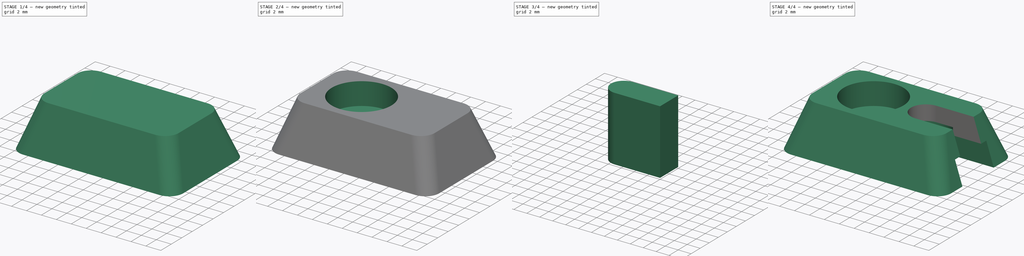
[diagram: build sequence overview — one tinted view per stage of 4, left to right]
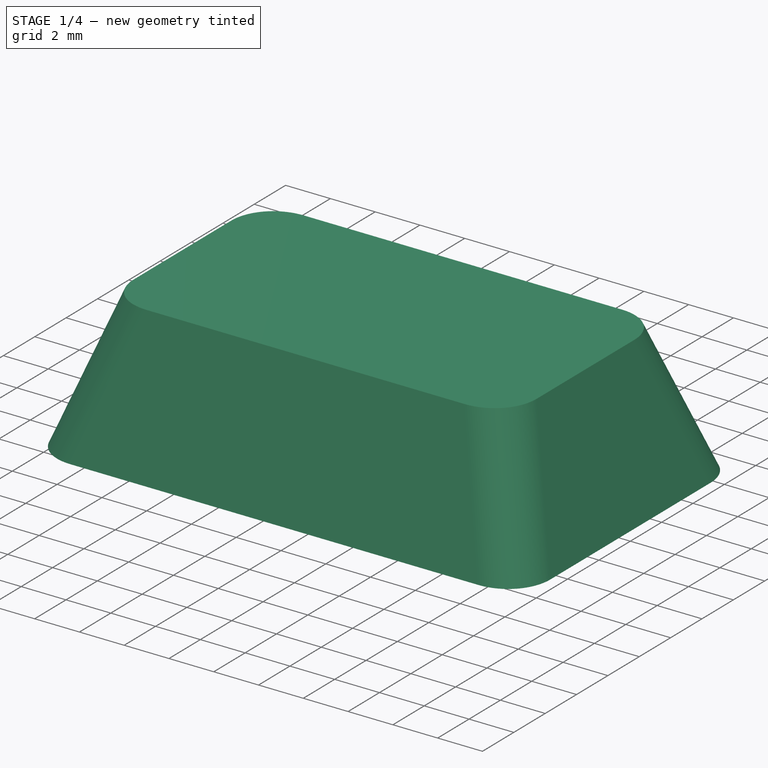
[diagram: stage 1 of 4 — iso view after this stage's code; geometry added in this stage tinted green]
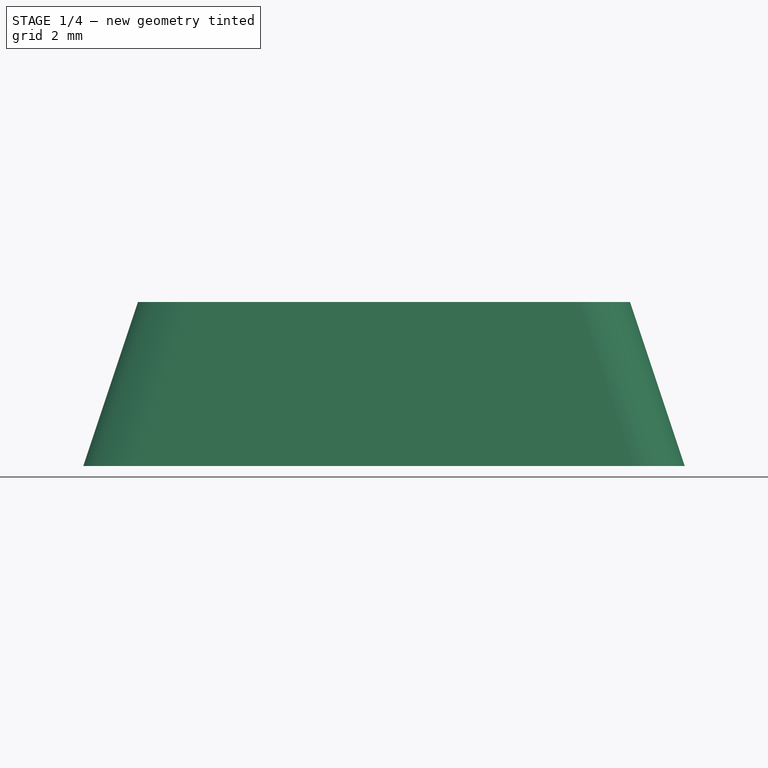
[diagram: stage 1 of 4 — front view after this stage's code; geometry added in this stage tinted green]
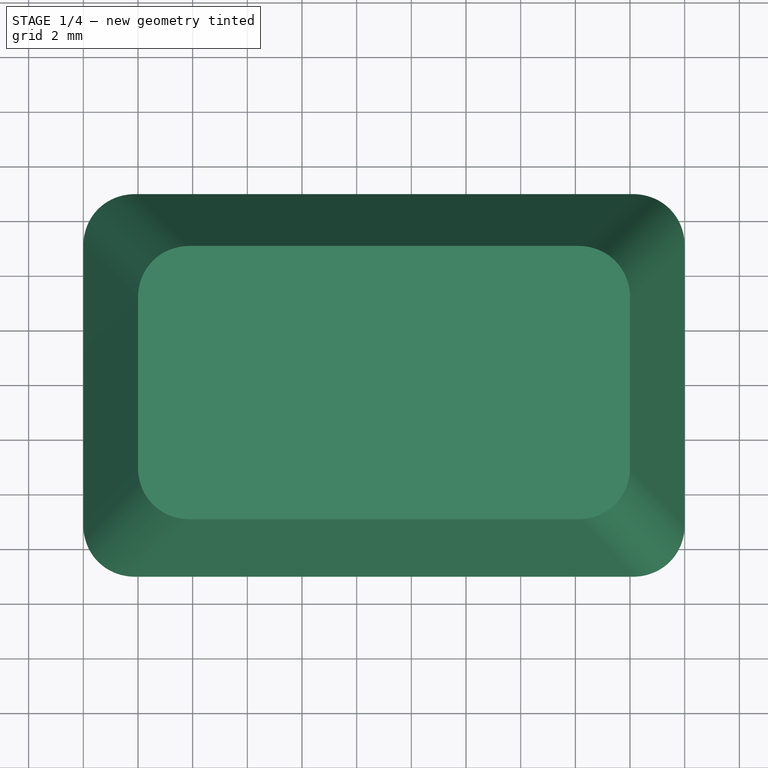
[diagram: stage 1 of 4 — top view after this stage's code; geometry added in this stage tinted green]
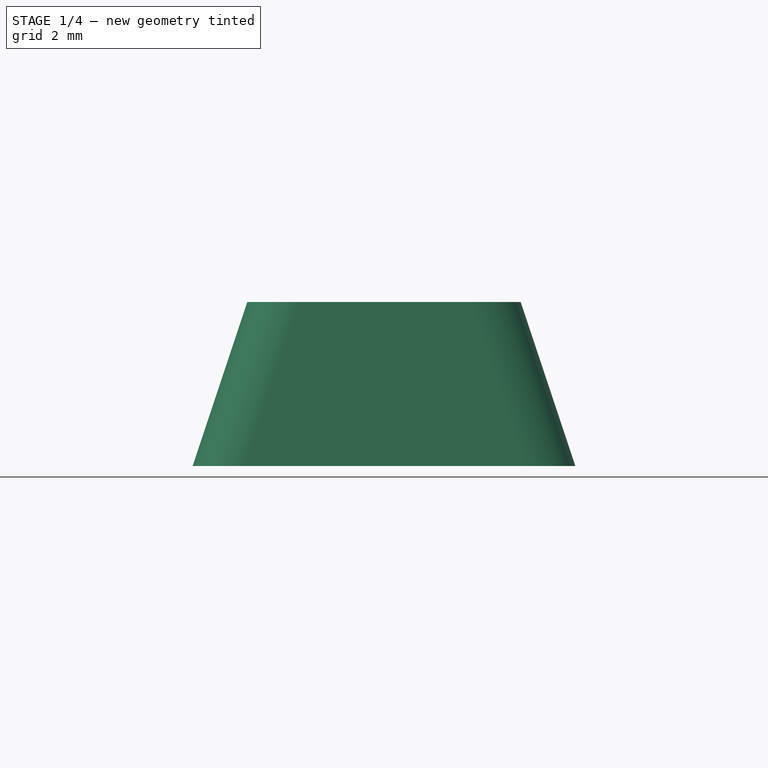
[diagram: stage 1 of 4 — right view after this stage's code; geometry added in this stage tinted green]
FCSTD DOCUMENT  (FreeCAD 0.15R4671 (Git))
Label: tensor.FCSt
License: All rights reserved
LicenseURL: http://en.wikipedia.org/wiki/All_rights_reserved
objects: Sketcher::SketchObject×5, PartDesign::Pocket×3, PartDesign::Pad×2, Part::Cut×2, Part::Wedge×1, Part::Fillet×1
note: 19 computed .brp shape members not serialized (recipe doc carries the construction recipe); baked Part::Feature solids carry a one-line shape summary decoded from their .brp

FEATURE [Part::Wedge] Wedge002  label="base"
  Placement = pos=(0,-7,0) rot=(0.57735,0.57735,0.57735;2.0944rad)
  X2max = 12
  X2min = 2
  Xmax = 14
  Xmin = 0
  Ymax = 6
  Ymin = 0
  Z2max = 20
  Z2min = 2
  Zmax = 22
  Zmin = 0
FEATURE [Part::Fillet] Fillet  label="base_redondeada"
  Base = -> Wedge002
  Edges = 4 edges r=2: [Edge2,Edge4,Edge6,Edge8]
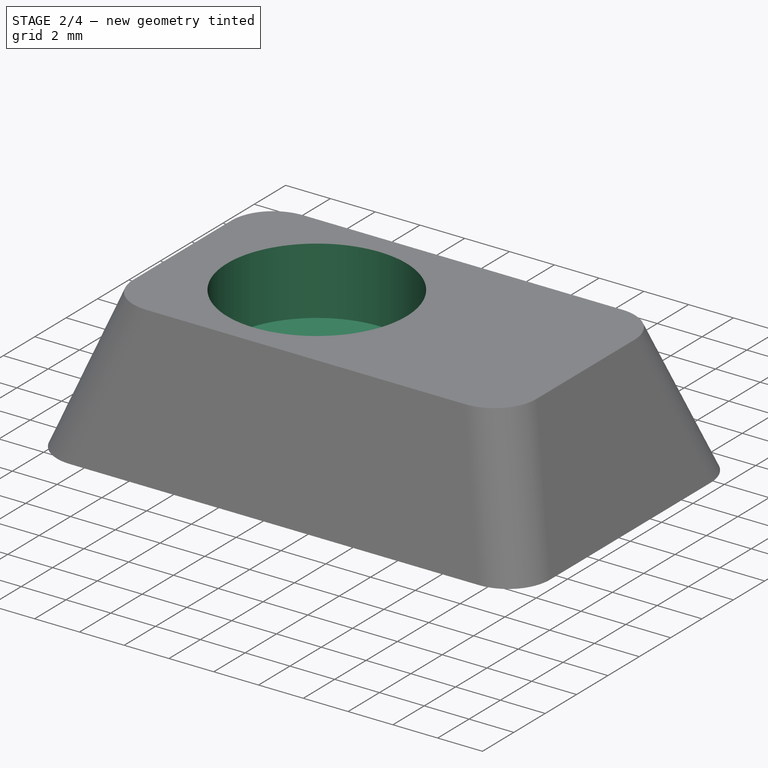
[diagram: stage 2 of 4 — iso view after this stage's code; geometry added in this stage tinted green]
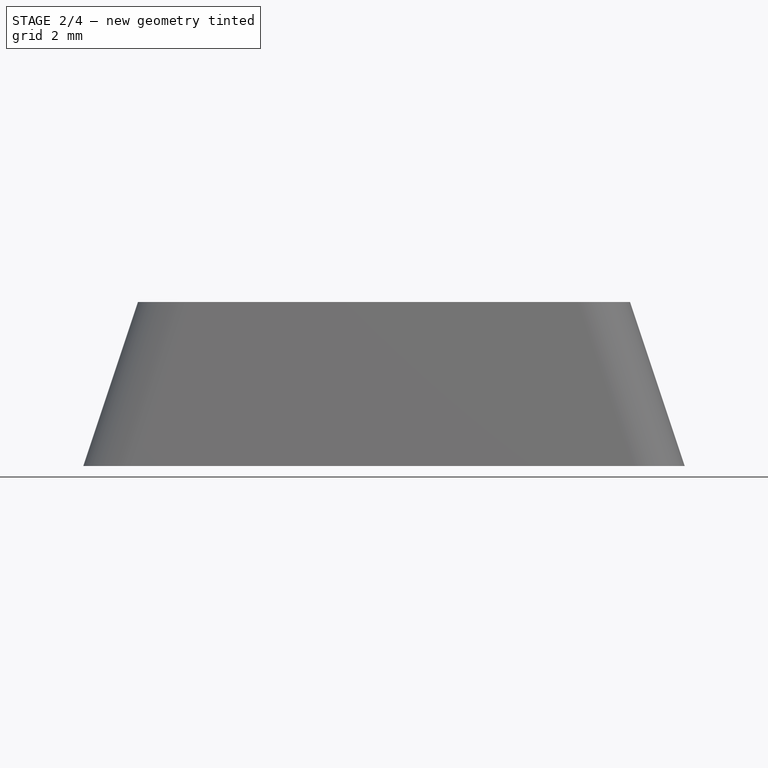
[diagram: stage 2 of 4 — front view after this stage's code; geometry added in this stage tinted green]
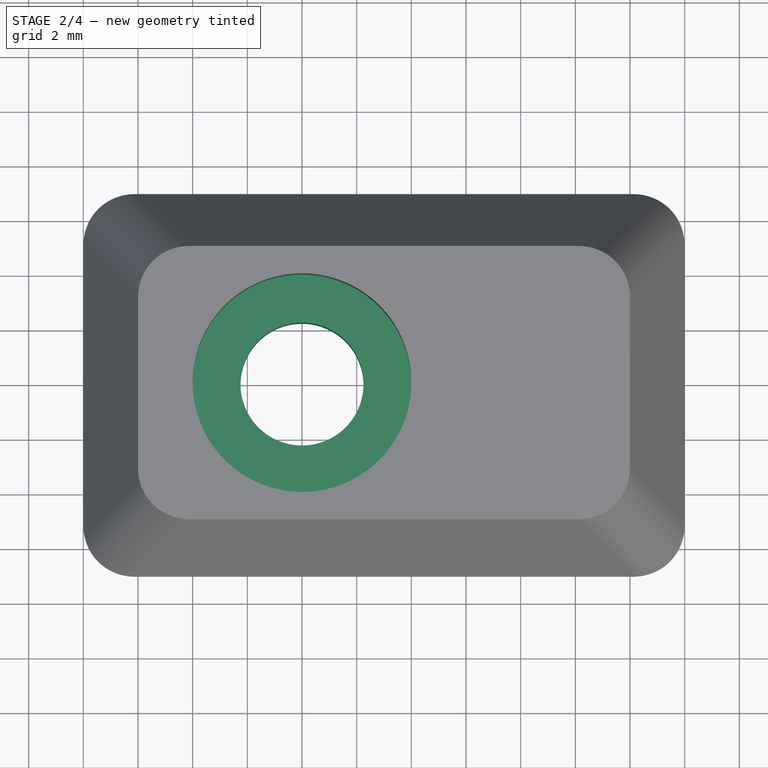
[diagram: stage 2 of 4 — top view after this stage's code; geometry added in this stage tinted green]
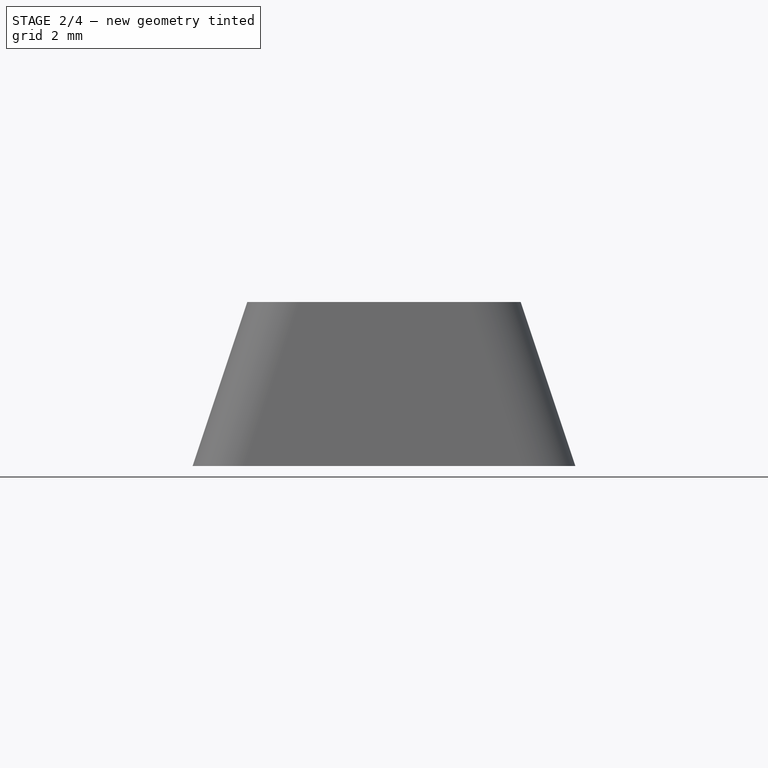
[diagram: stage 2 of 4 — right view after this stage's code; geometry added in this stage tinted green]
FEATURE [Sketcher::SketchObject] Sketch
  ExternalGeometry = -> [Fillet]
  Placement = pos=(0,0,6) rot=(0,0,1;0rad)
  Support = -> Fillet [Face5]
  sketch-geometry (4):
    g0: LineSegment [constr] StartX=2 StartY=0 StartZ=0 EndX=8 EndY=0 EndZ=0
    g1: LineSegment [constr] StartX=8 StartY=0 StartZ=0 EndX=8 EndY=5 EndZ=0
    g2: LineSegment [constr] StartX=8 StartY=0 StartZ=0 EndX=8 EndY=-5 EndZ=0
    g3: Circle CenterX=8 CenterY=0 CenterZ=0 NormalX=0 NormalY=0 NormalZ=1 Radius=4
  constraints (12):
    c: PointOnObject(g0,g-3)
    c: Horizontal(g0)
    c: DistanceX(g0) = 6
    c: Coincident(g1,g0)
    c: PointOnObject(g1,g-4)
    c: Vertical(g1)
    c: Coincident(g2,g0)
    c: PointOnObject(g2,g-5)
    c: Vertical(g2)
    c: Equal(g1,g2)
    c: Coincident(g3,g0)
    c: Radius(g3) = 4
FEATURE [PartDesign::Pocket] Pocket  label="base_medio_agujero_tornillo"
  Length = 3
  Sketch = -> Sketch
  Type = 0
FEATURE [Sketcher::SketchObject] Sketch001
  ExternalGeometry = -> [Pocket]
  Placement = pos=(0,0,3) rot=(0,0,1;0rad)
  Support = -> Pocket [Face12]
  sketch-geometry (1):
    g0: Circle CenterX=8 CenterY=0 CenterZ=0 NormalX=0 NormalY=0 NormalZ=1 Radius=2.25
  constraints (2):
    c: Coincident(g0,g-3)
    c: Radius(g0) = 2.25
FEATURE [PartDesign::Pocket] Pocket001  label="base_agujero_tornillo"
  Length = 5
  Sketch = -> Sketch001
  Type = 1
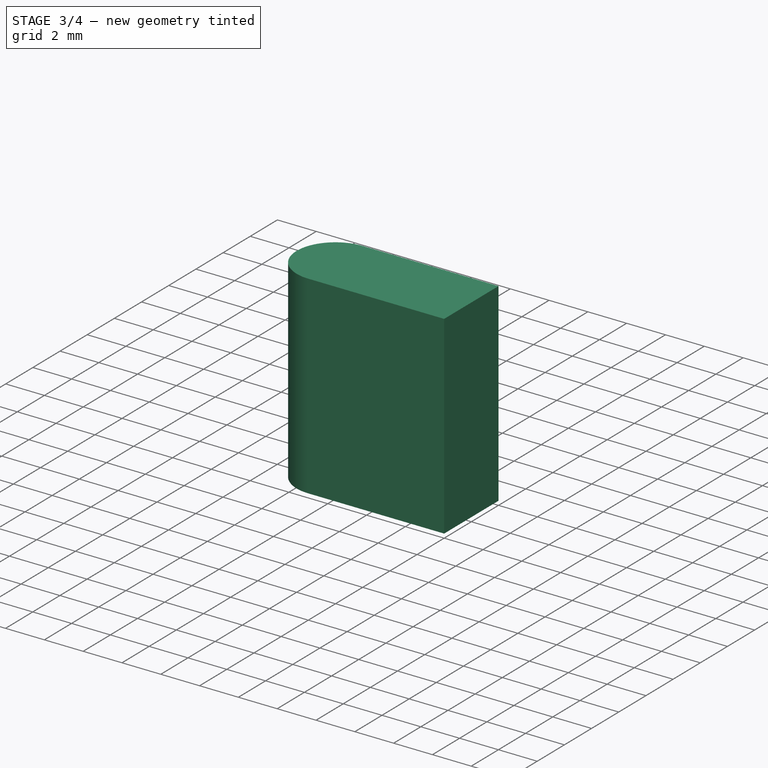
[diagram: stage 3 of 4 — iso view after this stage's code; geometry added in this stage tinted green]
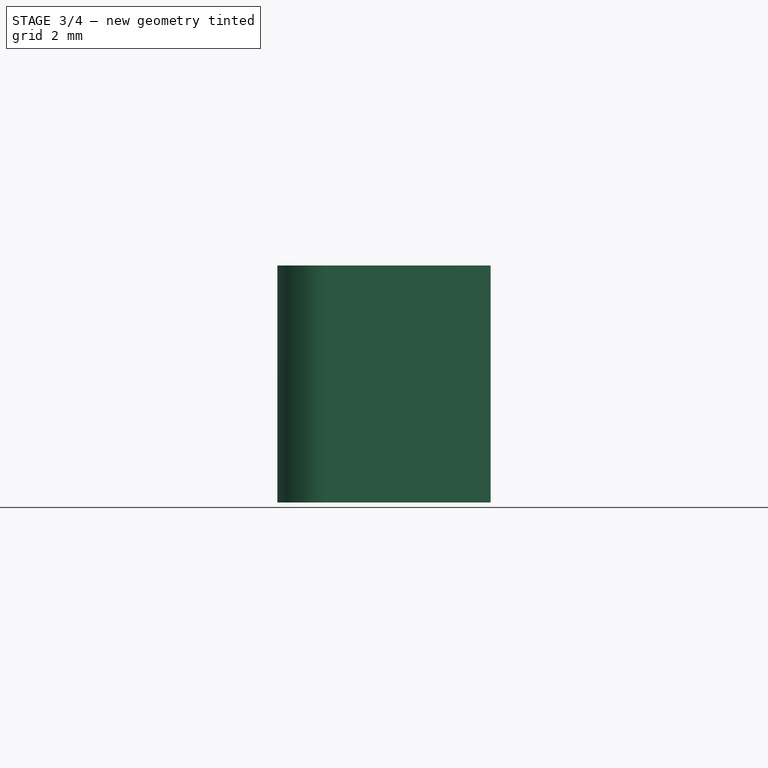
[diagram: stage 3 of 4 — front view after this stage's code; geometry added in this stage tinted green]
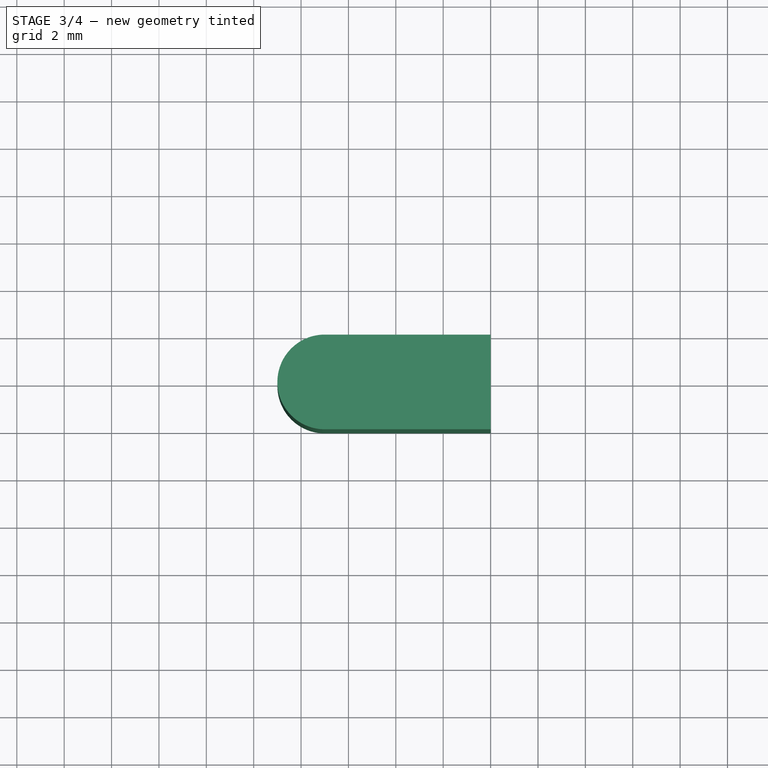
[diagram: stage 3 of 4 — top view after this stage's code; geometry added in this stage tinted green]
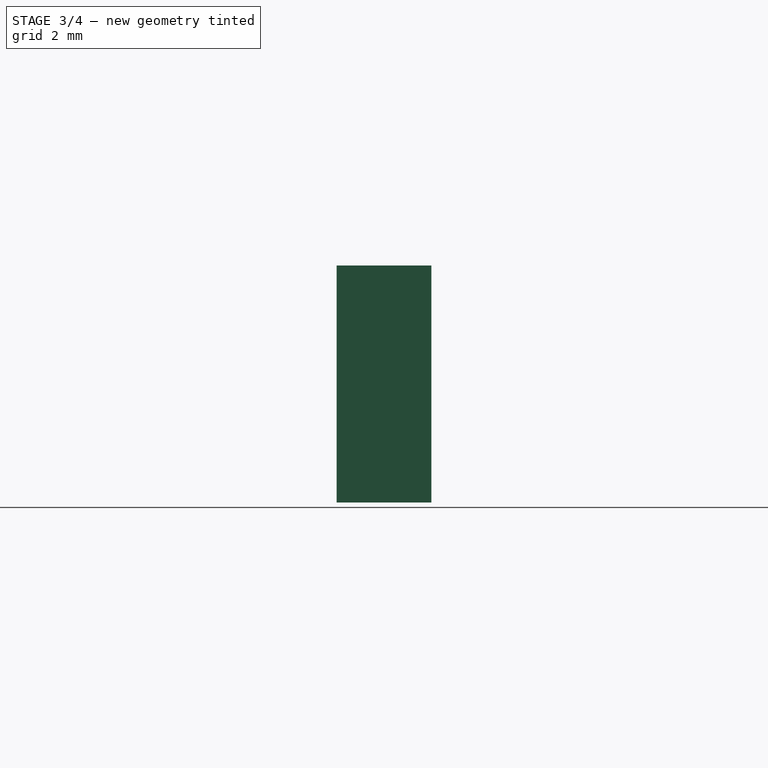
[diagram: stage 3 of 4 — right view after this stage's code; geometry added in this stage tinted green]
FEATURE [Sketcher::SketchObject] Sketch002
  ExternalGeometry = -> [Pocket001]
  sketch-geometry (7):
    g0: LineSegment StartX=22 StartY=3 StartZ=0 EndX=15 EndY=3 EndZ=0
    g1: LineSegment StartX=22 StartY=-3 StartZ=0 EndX=15 EndY=-3 EndZ=0
    g2: ArcOfCircle CenterX=15 CenterY=0 CenterZ=0 NormalX=0 NormalY=0 NormalZ=1 Radius=3 StartAngle=1.5708 EndAngle=4.71239
    g3: LineSegment [constr] StartX=22 StartY=0 StartZ=0 EndX=12 EndY=0 EndZ=0
    g4: LineSegment StartX=22 StartY=3 StartZ=0 EndX=22 EndY=-3 EndZ=0
    g5: LineSegment StartX=22 StartY=3 StartZ=0 EndX=22 EndY=-3 EndZ=0
    g6: LineSegment StartX=22 StartY=3 StartZ=0 EndX=22 EndY=-3 EndZ=0
  constraints (21):
    c: PointOnObject(g0,g-3)
    c: Horizontal(g0)
    c: Horizontal(g1)
    c: Symmetric(g1,g0,g-1)
    c: PointOnObject(g2,g-1)
    c: Coincident(g2,g0)
    c: Coincident(g2,g1)
    c: Tangent(g2,g0)
    c: PointOnObject(g3,g-1)
    c: PointOnObject(g3,g2)
    c: Horizontal(g3)
    c: PointOnObject(g3,g-3)
    c: DistanceX(g3) = -10
    c: Coincident(g4,g0)
    c: Coincident(g4,g1)
    c: Coincident(g5,g0)
    c: Coincident(g5,g1)
    c: DistanceY(g5) = -6
    c: Vertical(g6)
    c: Coincident(g6,g0)
    c: Coincident(g6,g1)
FEATURE [PartDesign::Pad] Pad  label="camara_inferior soporte."
  Length = 3
  Length2 = 100
  Sketch = -> Sketch002
  Type = 0
FEATURE [Part::Cut] Cut  label="base_agujero_tornillo_camara_inferior"
  Base = -> Pocket001
  Tool = -> Pad
FEATURE [Sketcher::SketchObject] Sketch003
  ExternalGeometry = -> [Cut]
  sketch-geometry (7):
    g0: LineSegment StartX=20 StartY=2 StartZ=0 EndX=15 EndY=2 EndZ=0
    g1: LineSegment StartX=20 StartY=-2 StartZ=0 EndX=15 EndY=-2 EndZ=0
    g2: ArcOfCircle CenterX=15 CenterY=0 CenterZ=0 NormalX=0 NormalY=0 NormalZ=1 Radius=2 StartAngle=1.57079 EndAngle=4.7124
    g3: LineSegment [constr] StartX=20 StartY=0 StartZ=0 EndX=13 EndY=0 EndZ=0
    g4: LineSegment StartX=20 StartY=2 StartZ=0 EndX=22 EndY=2 EndZ=0
    g5: LineSegment StartX=22 StartY=2 StartZ=0 EndX=22 EndY=-2 EndZ=0
    g6: LineSegment StartX=22 StartY=-2 StartZ=0 EndX=20 EndY=-2 EndZ=0
  constraints (23):
    c: PointOnObject(g0,g-3)
    c: Symmetric(g0,g1,g-1)
    c: DistanceY(g0,g1) = -4
    c: Horizontal(g0)
    c: Horizontal(g1)
    c: Equal(g0,g1)
    c: PointOnObject(g2,g-1)
    c: Coincident(g2,g0)
    c: Coincident(g2,g1)
    c: PointOnObject(g3,g-1)
    c: PointOnObject(g3,g2)
    c: PointOnObject(g3,g-3)
    c: Horizontal(g3)
    c: DistanceX(g3) = -7
    c: Coincident(g4,g0)
    c: Horizontal(g4)
    c: Coincident(g5,g4)
    c: Vertical(g5)
    c: Coincident(g6,g5)
    c: Coincident(g6,g1)
    c: Horizontal(g6)
    c: DistanceX(g6) = -2
    c: Tangent(g0,g2)
FEATURE [PartDesign::Pad] Pad001  label="camara_superior"
  Length = 10
  Length2 = 100
  Sketch = -> Sketch003
  Type = 0
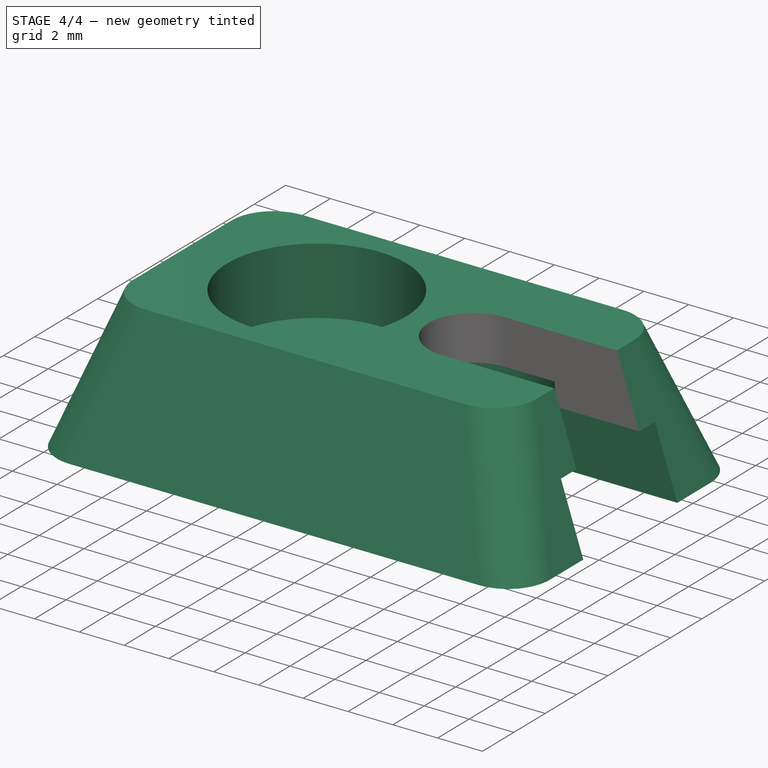
[diagram: stage 4 of 4 — iso view after this stage's code; geometry added in this stage tinted green]
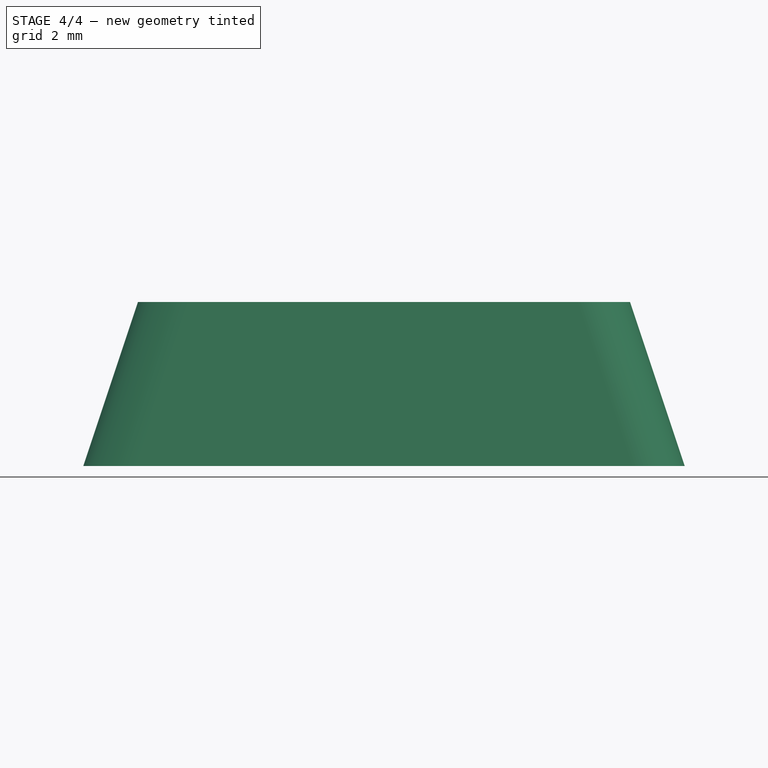
[diagram: stage 4 of 4 — front view after this stage's code; geometry added in this stage tinted green]
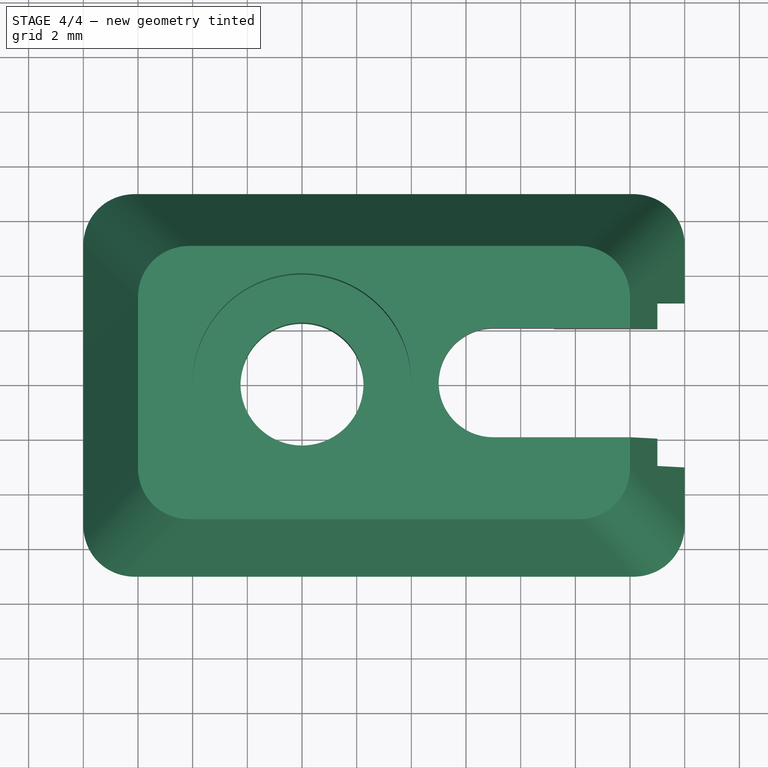
[diagram: stage 4 of 4 — top view after this stage's code; geometry added in this stage tinted green]
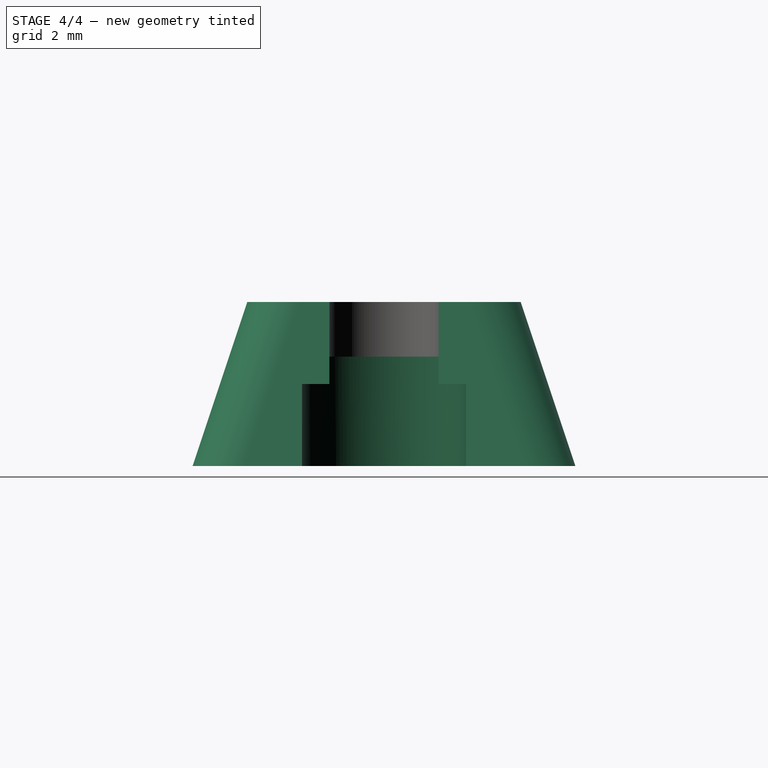
[diagram: stage 4 of 4 — right view after this stage's code; geometry added in this stage tinted green]
FEATURE [Part::Cut] Cut001  label="base_agujero_tornillo_soporte"
  Base = -> Cut
  Tool = -> Pad001
FEATURE [Sketcher::SketchObject] Sketch004
  ExternalGeometry = -> [Cut001]
  Placement = pos=(0,0,3) rot=(1,0,0;3.14159rad)
  Support = -> Cut001 [Face20]
  sketch-geometry (2):
    g0: LineSegment [constr] StartX=15 StartY=3 StartZ=0 EndX=15 EndY=-3 EndZ=0
    g1: Circle CenterX=15 CenterY=0 CenterZ=0 NormalX=0 NormalY=0 NormalZ=1 Radius=3
  constraints (5):
    c: Coincident(g0,g-3)
    c: Coincident(g0,g-4)
    c: PointOnObject(g1,g-1)
    c: PointOnObject(g0,g1)
    c: PointOnObject(g1,g0)
FEATURE [PartDesign::Pocket] Pocket002  label="pieza_tensor_veneciana"
  Length = 1
  Sketch = -> Sketch004
  Type = 0
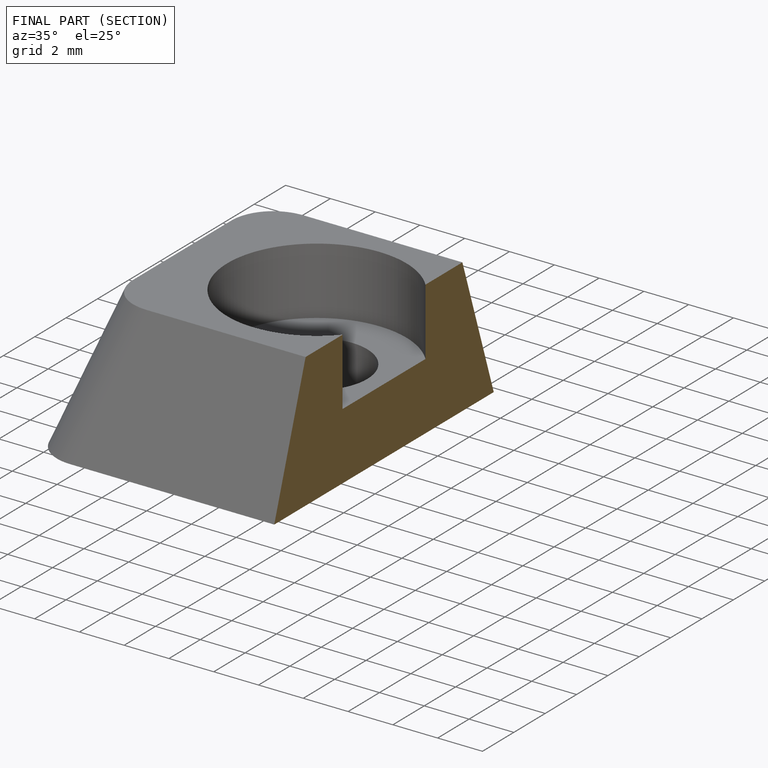
[diagram: finished part — half-section view (interior)]
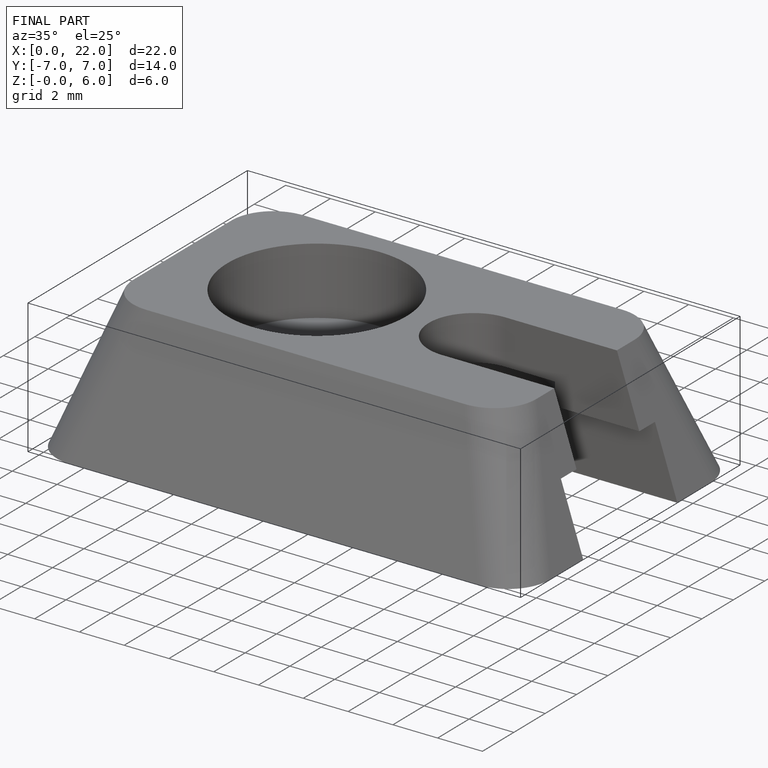
[diagram: finished part — iso view with bounding-box wireframe]
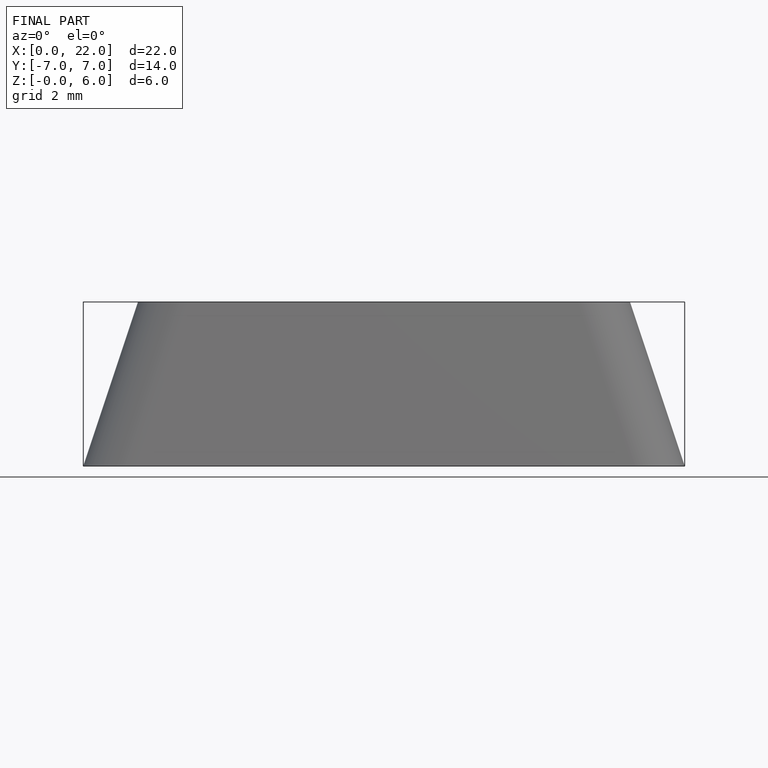
[diagram: finished part — front view with bounding-box wireframe]
